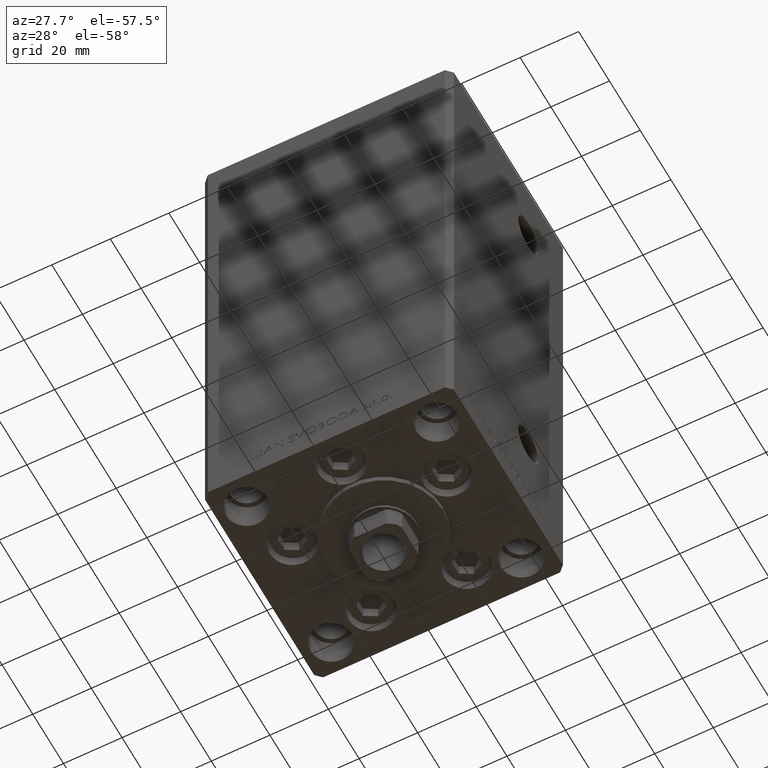
[diagram: clean part render]
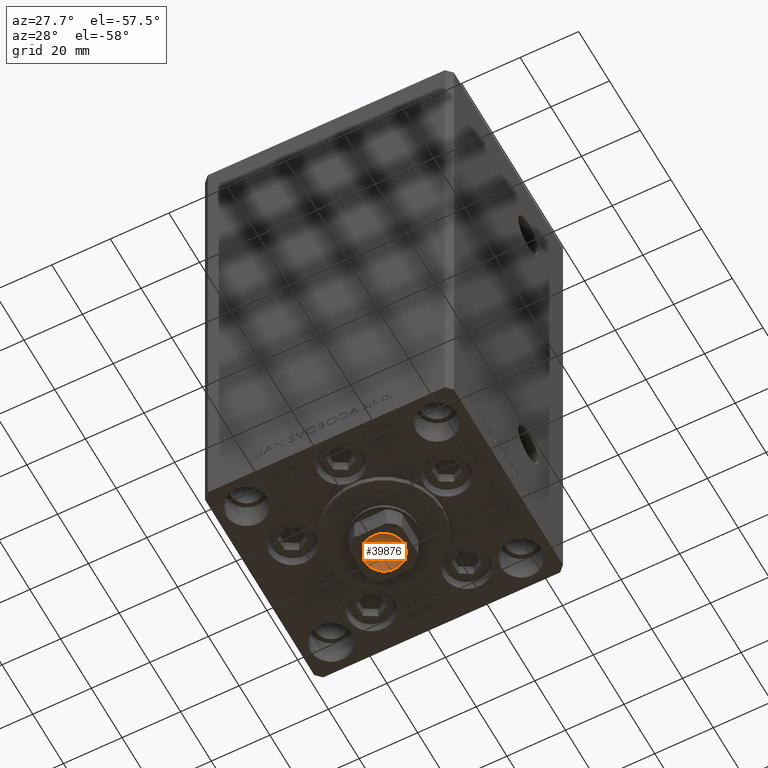
[diagram: same view with one face highlighted and labeled with its STEP entity id]
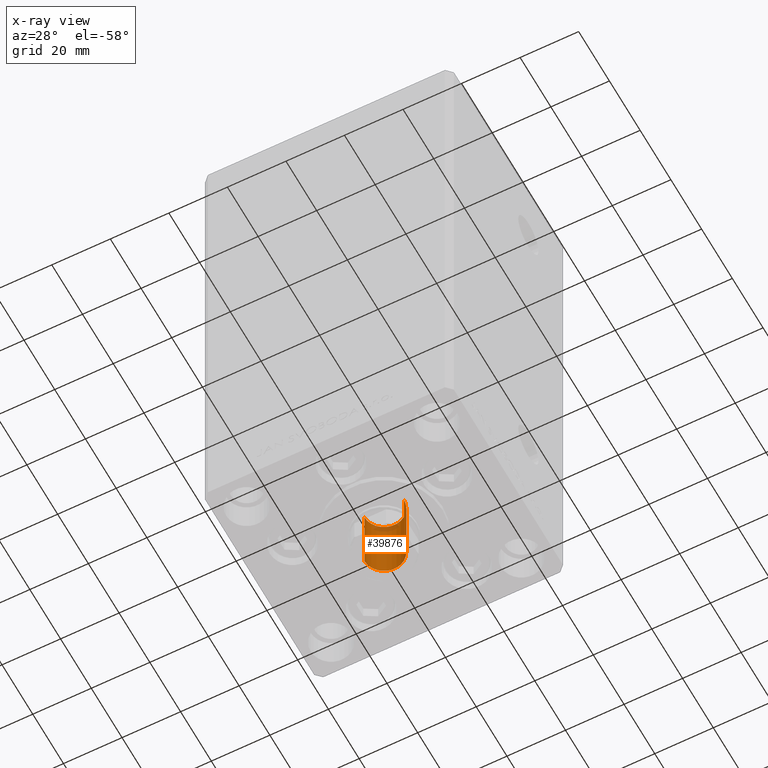
[diagram: x-ray of the same camera — body ghosted, the highlighted face saturated]
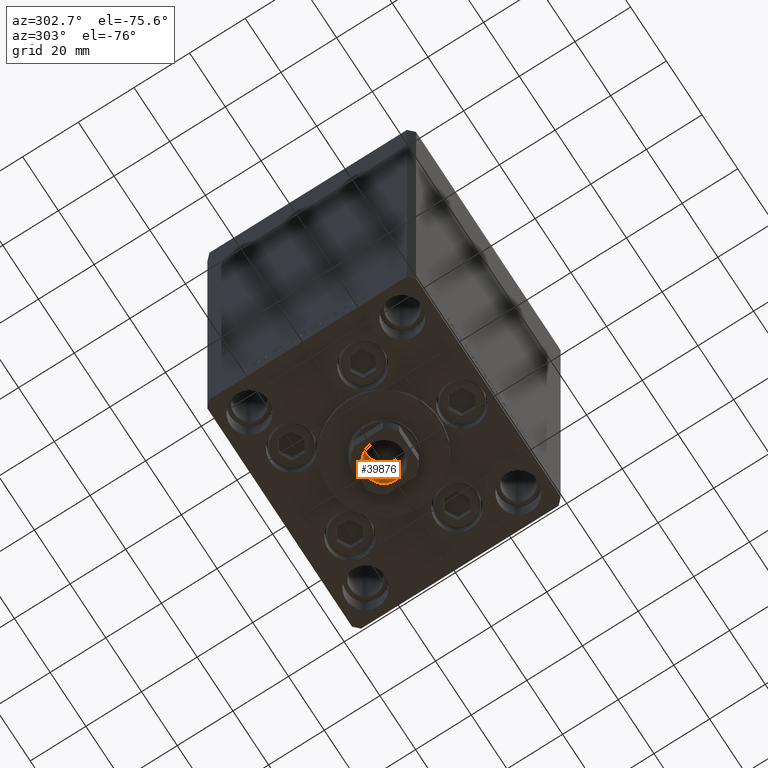
[diagram: same view with one face highlighted and labeled with its STEP entity id]
A machine part, auxiliary view. The second image highlights one B-rep face of the part: STEP entity #39876.
The next image is the same camera in x-ray: the body ghosted, the highlighted face saturated — about 7% of this face is hidden behind the body in this view.
A second angle (auxiliary view) of the same face is appended — the face is thin or edge-on in the first view.
In plain terms, the highlighted cylindrical surface (edge-blend (fillet) strip) has radius 6.75 mm, axis along (0, 0, -1).
Its self-contained STEP definition (entity closure, byte-faithful):
#1099 = CARTESIAN_POINT ( 'NONE',  ( 0.000000000000000000, 0.000000000000000000, 155.4499999999999886 ) ) ;
#1576 = CIRCLE ( 'NONE', #11911, 6.749999999999993783 ) ;
#1582 = DIRECTION ( 'NONE',  ( 0.000000000000000000, 0.000000000000000000, 1.000000000000000000 ) ) ;
#1902 = EDGE_CURVE ( 'NONE', #37675, #14577, #1576, .T. ) ;
#2774 = DIRECTION ( 'NONE',  ( -0.000000000000000000, -0.000000000000000000, 1.000000000000000000 ) ) ;
#4356 = ORIENTED_EDGE ( 'NONE', *, *, #19317, .F. ) ;
#6218 = CARTESIAN_POINT ( 'NONE',  ( -6.749999999999993783, 8.266365894244626445E-16, 130.7500000000000000 ) ) ;
#7266 = CARTESIAN_POINT ( 'NONE',  ( 0.000000000000000000, 0.000000000000000000, 130.7500000000000000 ) ) ;
#9298 = CARTESIAN_POINT ( 'NONE',  ( 0.000000000000000000, 0.000000000000000000, 155.7500000000000000 ) ) ;
#10894 = VERTEX_POINT ( 'NONE', #15078 ) ;
#11911 = AXIS2_PLACEMENT_3D ( 'NONE', #7266, #22453, #49097 ) ;
#12060 = VERTEX_POINT ( 'NONE', #30041 ) ;
#12417 = DIRECTION ( 'NONE',  ( -0.000000000000000000, -0.000000000000000000, 1.000000000000000000 ) ) ;
#13503 = ORIENTED_EDGE ( 'NONE', *, *, #47356, .T. ) ;
#14577 = VERTEX_POINT ( 'NONE', #6218 ) ;
#15078 = CARTESIAN_POINT ( 'NONE',  ( -6.749999999999995559, 8.266365894244628417E-16, 155.4499999999999886 ) ) ;
#15223 = ORIENTED_EDGE ( 'NONE', *, *, #1902, .F. ) ;
#16615 = DIRECTION ( 'NONE',  ( -0.000000000000000000, -0.000000000000000000, 1.000000000000000000 ) ) ;
#16839 = VECTOR ( 'NONE', #12417, 1000.000000000000000 ) ;
#19317 = EDGE_CURVE ( 'NONE', #14577, #10894, #21534, .T. ) ;
#20130 = CARTESIAN_POINT ( 'NONE',  ( 6.749999999999993783, 0.000000000000000000, 130.7500000000000000 ) ) ;
#20276 = FACE_OUTER_BOUND ( 'NONE', #24747, .T. ) ;
#21534 = LINE ( 'NONE', #25519, #42745 ) ;
#22453 = DIRECTION ( 'NONE',  ( -0.000000000000000000, -0.000000000000000000, 1.000000000000000000 ) ) ;
#24747 = EDGE_LOOP ( 'NONE', ( #4356, #15223, #13503, #32177 ) ) ;
#25328 = AXIS2_PLACEMENT_3D ( 'NONE', #1099, #1582, #35946 ) ;
#25519 = CARTESIAN_POINT ( 'NONE',  ( -6.749999999999995559, 8.266365894244628417E-16, 155.7500000000000000 ) ) ;
#25615 = EDGE_CURVE ( 'NONE', #12060, #10894, #30882, .T. ) ;
#28610 = CARTESIAN_POINT ( 'NONE',  ( 6.749999999999995559, 0.000000000000000000, 155.7500000000000000 ) ) ;
#30041 = CARTESIAN_POINT ( 'NONE',  ( 6.749999999999995559, 0.000000000000000000, 155.4499999999999886 ) ) ;
#30882 = CIRCLE ( 'NONE', #25328, 6.749999999999995559 ) ;
#32177 = ORIENTED_EDGE ( 'NONE', *, *, #25615, .T. ) ;
#35704 = CYLINDRICAL_SURFACE ( 'NONE', #39964, 6.749999999999995559 ) ;
#35946 = DIRECTION ( 'NONE',  ( 1.000000000000000000, 0.000000000000000000, 0.000000000000000000 ) ) ;
#37675 = VERTEX_POINT ( 'NONE', #20130 ) ;
#39564 = LINE ( 'NONE', #28610, #16839 ) ;
#39876 = ADVANCED_FACE ( 'NONE', ( #20276 ), #35704, .F. ) ;
#39964 = AXIS2_PLACEMENT_3D ( 'NONE', #9298, #2774, #43177 ) ;
#42745 = VECTOR ( 'NONE', #16615, 1000.000000000000000 ) ;
#43177 = DIRECTION ( 'NONE',  ( 1.000000000000000000, 0.000000000000000000, 0.000000000000000000 ) ) ;
#47356 = EDGE_CURVE ( 'NONE', #37675, #12060, #39564, .T. ) ;
#49097 = DIRECTION ( 'NONE',  ( 1.000000000000000000, 0.000000000000000000, 0.000000000000000000 ) ) ;